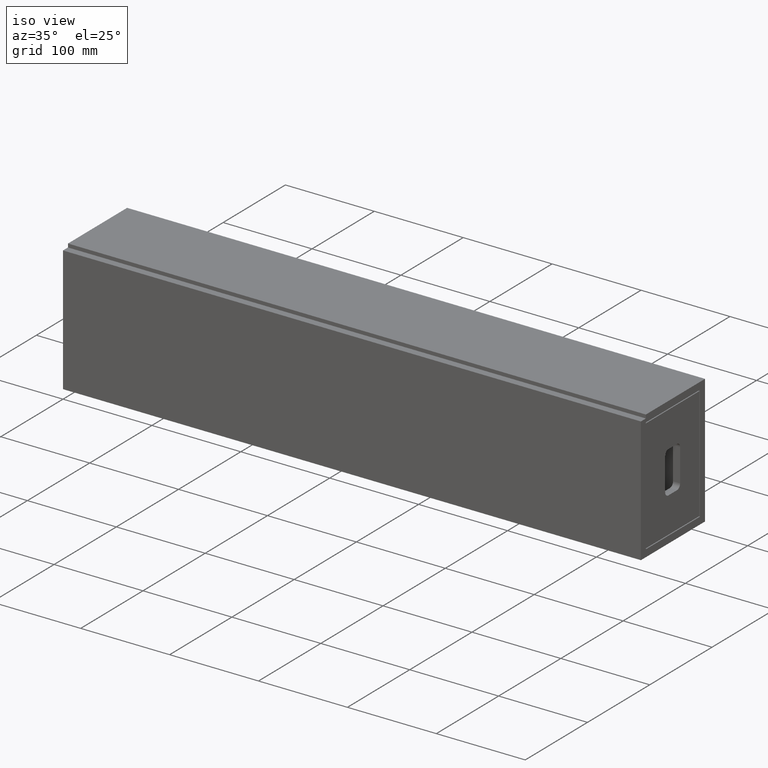
[diagram: clean part render]
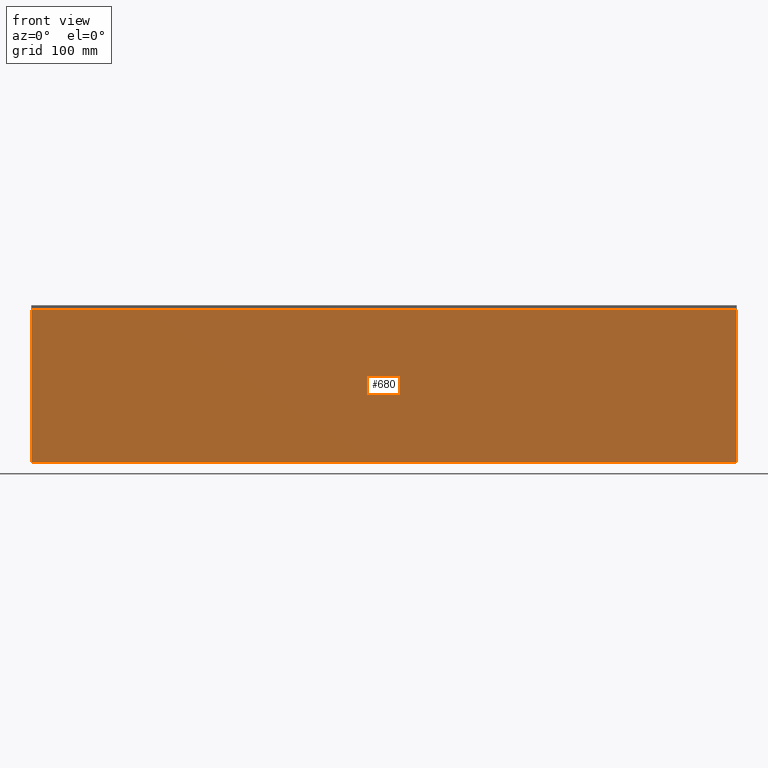
[diagram: tour spotlight — one face highlighted and labeled with its STEP entity id]
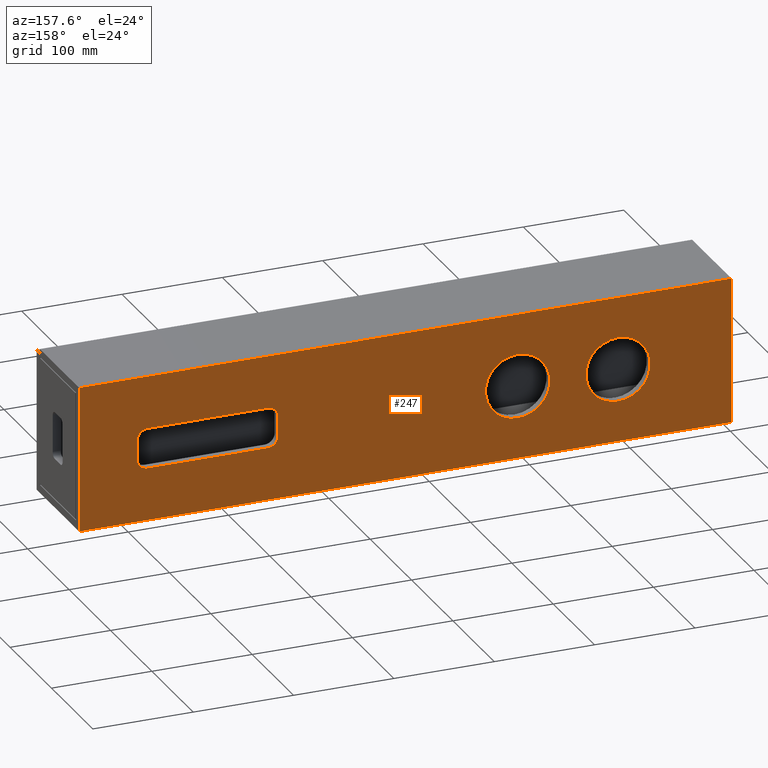
[diagram: tour spotlight — one face highlighted and labeled with its STEP entity id]
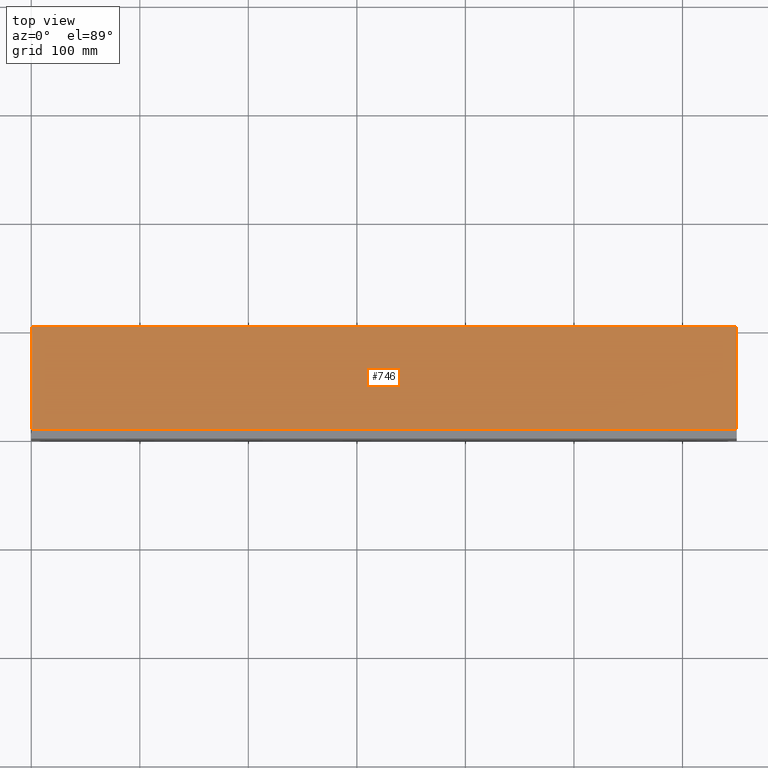
[diagram: tour spotlight — one face highlighted and labeled with its STEP entity id]
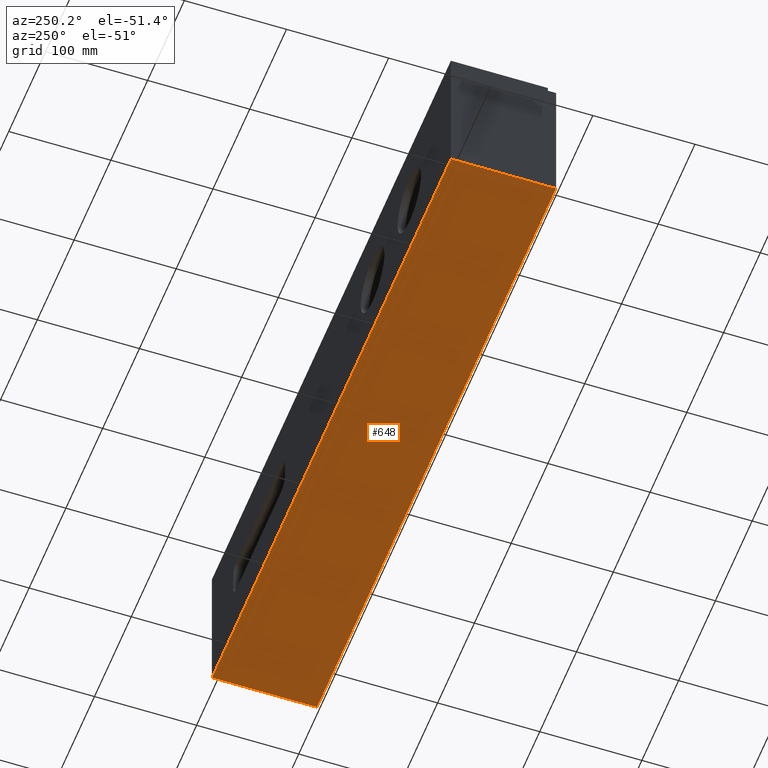
[diagram: tour spotlight — one face highlighted and labeled with its STEP entity id]
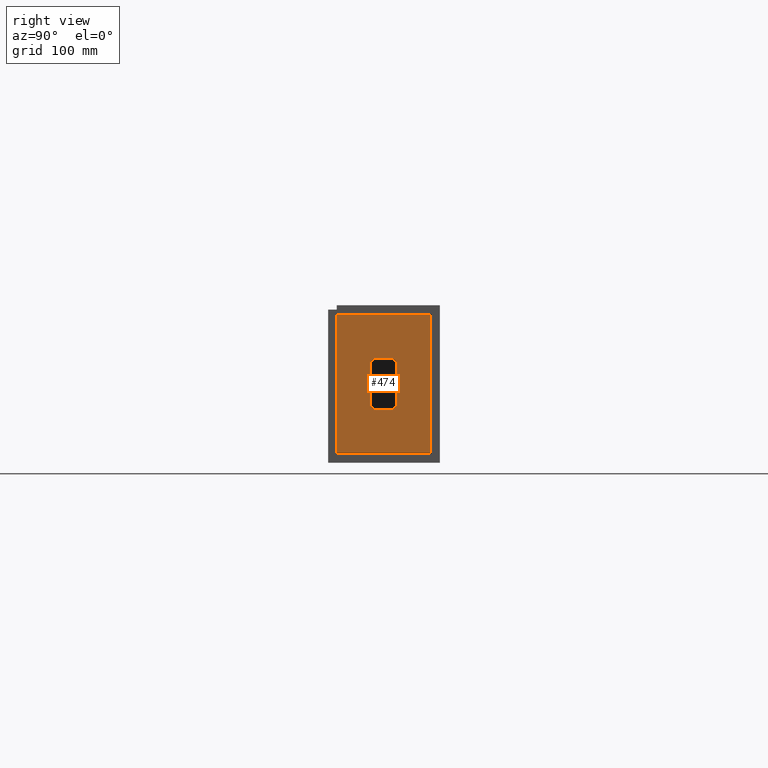
[diagram: tour spotlight — one face highlighted and labeled with its STEP entity id]
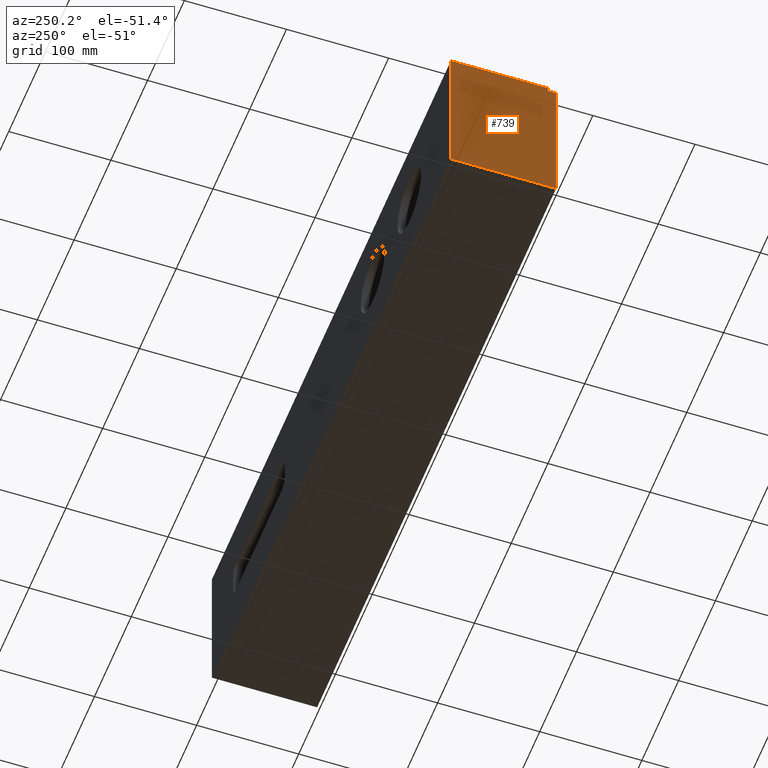
[diagram: tour spotlight — one face highlighted and labeled with its STEP entity id]
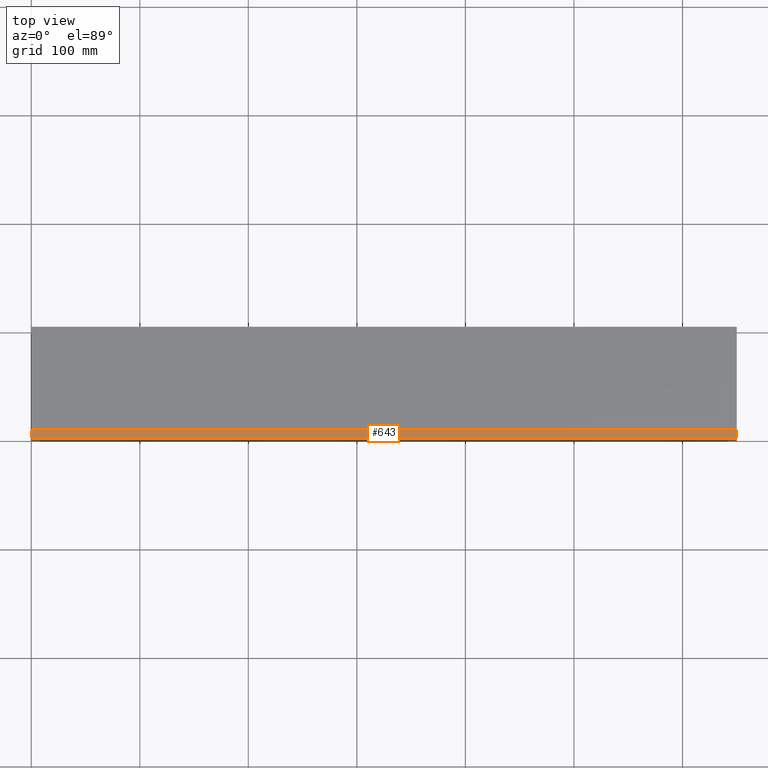
[diagram: tour spotlight — one face highlighted and labeled with its STEP entity id]
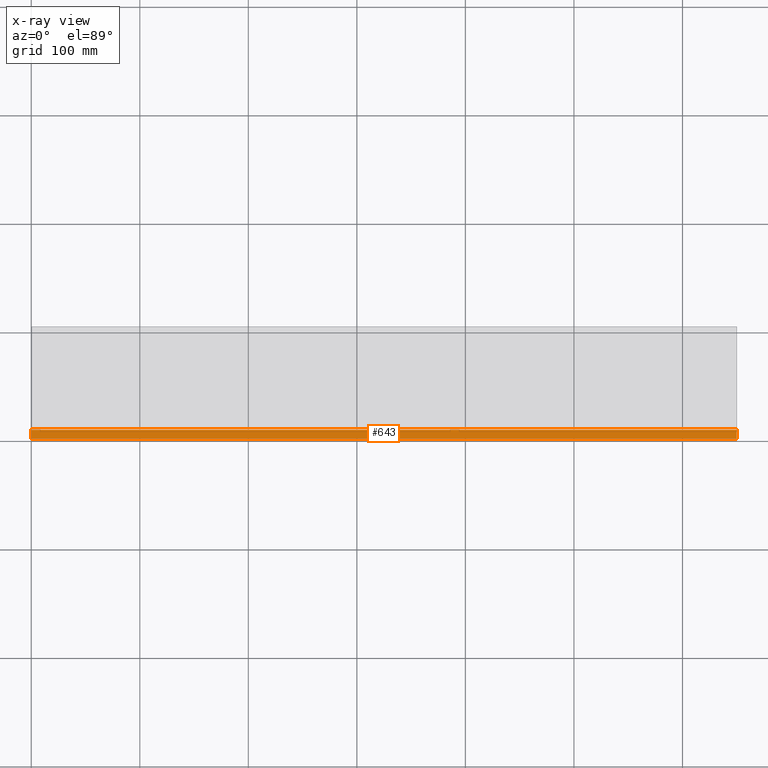
[diagram: x-ray of the same camera — body ghosted, this tour face saturated]
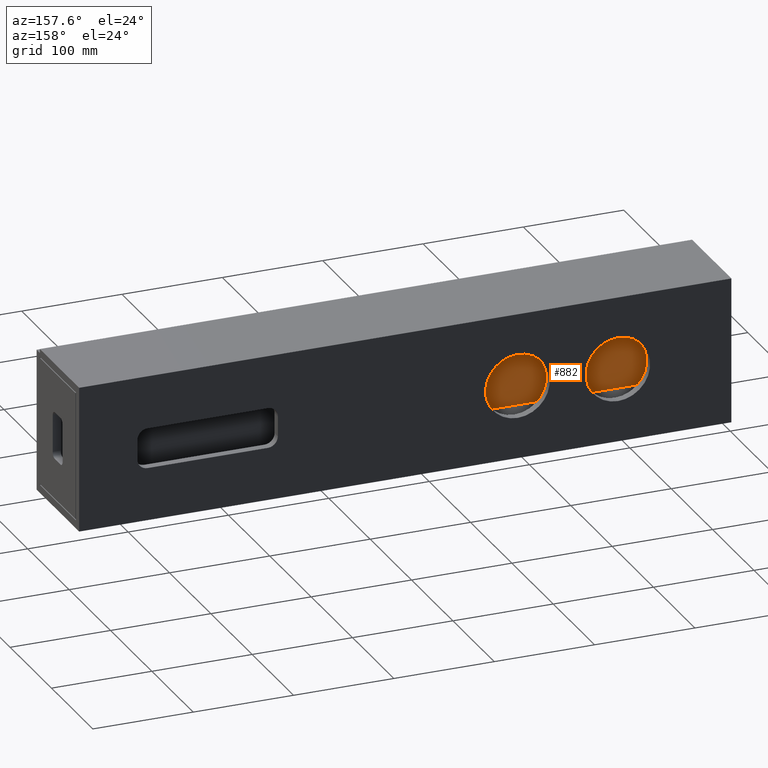
[diagram: tour spotlight — one face highlighted and labeled with its STEP entity id]
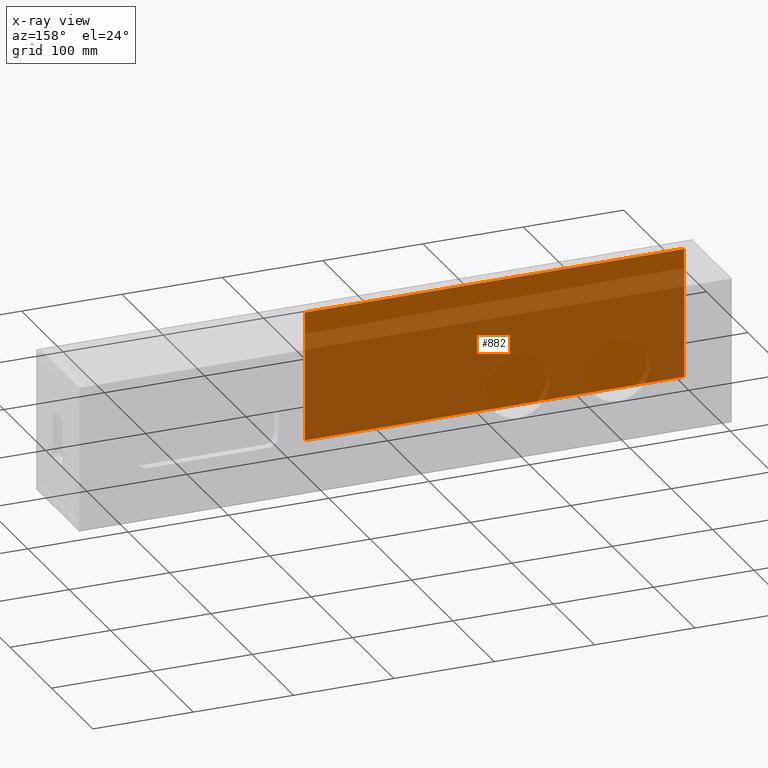
[diagram: x-ray of the same camera — body ghosted, this tour face saturated]
A machine part: a face-by-face anatomy tour. The part has 49 B-rep faces; the first image is the clean iso view, then the 8 largest visible faces are spotlighted one at a time (largest first), each with its STEP entity span.

Face 1 — front view, entity #680. In plain terms, the highlighted planar face has unit normal (-0, 1, 0).
Definition (entity closure, byte-faithful):
#3 = VECTOR ( 'NONE', #138, 1000.000000000000000 ) ;
#138 = DIRECTION ( 'NONE',  ( -1.000000000000000000, -0.0000000000000000000, -0.0000000000000000000 ) ) ;
#140 = CARTESIAN_POINT ( 'NONE',  ( 650.0000000000000000, -1.734723475976807094E-14, 141.0000000000000000 ) ) ;
#141 = LINE ( 'NONE', #140, #3 ) ;
#174 = VERTEX_POINT ( 'NONE', #513 ) ;
#200 = VECTOR ( 'NONE', #1122, 1000.000000000000000 ) ;
#362 = EDGE_CURVE ( 'NONE', #174, #1449, #141, .T. ) ;
#378 = VECTOR ( 'NONE', #1565, 1000.000000000000000 ) ;
#380 = AXIS2_PLACEMENT_3D ( 'NONE', #1270, #1268, #1266 ) ;
#477 = EDGE_CURVE ( 'NONE', #1261, #774, #1568, .T. ) ;
#508 = ORIENTED_EDGE ( 'NONE', *, *, #776, .F. ) ;
#513 = CARTESIAN_POINT ( 'NONE',  ( 650.0000000000000000, -1.734723475976807094E-14, 141.0000000000000000 ) ) ;
#544 = ORIENTED_EDGE ( 'NONE', *, *, #772, .T. ) ;
#568 = ORIENTED_EDGE ( 'NONE', *, *, #362, .T. ) ;
#601 = VECTOR ( 'NONE', #1130, 1000.000000000000000 ) ;
#680 = ADVANCED_FACE ( 'NONE', ( #1275 ), #1272, .F. ) ;
#755 = CARTESIAN_POINT ( 'NONE',  ( 0.0000000000000000000, -1.734723475976807094E-14, 141.0000000000000000 ) ) ;
#772 = EDGE_CURVE ( 'NONE', #1449, #774, #1135, .T. ) ;
#774 = VERTEX_POINT ( 'NONE', #1129 ) ;
#776 = EDGE_CURVE ( 'NONE', #174, #1261, #1126, .T. ) ;
#860 = CARTESIAN_POINT ( 'NONE',  ( 650.0000000000000000, 0.0000000000000000000, 0.0000000000000000000 ) ) ;
#963 = EDGE_LOOP ( 'NONE', ( #568, #544, #1369, #508 ) ) ;
#1122 = DIRECTION ( 'NONE',  ( -0.0000000000000000000, 1.230300337572203632E-16, -1.000000000000000000 ) ) ;
#1124 = CARTESIAN_POINT ( 'NONE',  ( 650.0000000000000000, 0.0000000000000000000, 0.0000000000000000000 ) ) ;
#1126 = LINE ( 'NONE', #1124, #200 ) ;
#1129 = CARTESIAN_POINT ( 'NONE',  ( 0.0000000000000000000, 0.0000000000000000000, 0.0000000000000000000 ) ) ;
#1130 = DIRECTION ( 'NONE',  ( -0.0000000000000000000, 1.230300337572203632E-16, -1.000000000000000000 ) ) ;
#1133 = CARTESIAN_POINT ( 'NONE',  ( 0.0000000000000000000, 0.0000000000000000000, 0.0000000000000000000 ) ) ;
#1135 = LINE ( 'NONE', #1133, #601 ) ;
#1261 = VERTEX_POINT ( 'NONE', #860 ) ;
#1266 = DIRECTION ( 'NONE',  ( 0.0000000000000000000, -1.230300337572203632E-16, 1.000000000000000000 ) ) ;
#1268 = DIRECTION ( 'NONE',  ( -0.0000000000000000000, 1.000000000000000000, 1.230300337572203632E-16 ) ) ;
#1270 = CARTESIAN_POINT ( 'NONE',  ( 650.0000000000000000, 0.0000000000000000000, 0.0000000000000000000 ) ) ;
#1272 = PLANE ( 'NONE',  #380 ) ;
#1275 = FACE_OUTER_BOUND ( 'NONE', #963, .T. ) ;
#1369 = ORIENTED_EDGE ( 'NONE', *, *, #477, .F. ) ;
#1449 = VERTEX_POINT ( 'NONE', #755 ) ;
#1565 = DIRECTION ( 'NONE',  ( -1.000000000000000000, -0.0000000000000000000, -0.0000000000000000000 ) ) ;
#1566 = CARTESIAN_POINT ( 'NONE',  ( 650.0000000000000000, 0.0000000000000000000, 0.0000000000000000000 ) ) ;
#1568 = LINE ( 'NONE', #1566, #378 ) ;

Face 2 — auxiliary view, entity #247. In plain terms, the highlighted planar face has unit normal (0, -1, -0).
Definition (entity closure, byte-faithful):
#1 = AXIS2_PLACEMENT_3D ( 'NONE', #1444, #1443, #1442 ) ;
#2 = DIRECTION ( 'NONE',  ( 0.0000000000000000000, -9.570888143320318106E-17, 1.000000000000000000 ) ) ;
#5 = CARTESIAN_POINT ( 'NONE',  ( 650.0000000000000000, 103.0000000000000000, 0.0000000000000000000 ) ) ;
#6 = LINE ( 'NONE', #5, #818 ) ;
#49 = AXIS2_PLACEMENT_3D ( 'NONE', #959, #957, #955 ) ;
#104 = AXIS2_PLACEMENT_3D ( 'NONE', #594, #471, #469 ) ;
#128 = CIRCLE ( 'NONE', #519, 32.00000000000000000 ) ;
#143 = CIRCLE ( 'NONE', #1, 32.00000000000000000 ) ;
#144 = DIRECTION ( 'NONE',  ( 1.000000000000000000, 0.0000000000000000000, 0.0000000000000000000 ) ) ;
#145 = CARTESIAN_POINT ( 'NONE',  ( 461.9999999999999432, 102.9999999999999858, 92.50000000000000000 ) ) ;
#146 = LINE ( 'NONE', #145, #788 ) ;
#147 = DIRECTION ( 'NONE',  ( -1.000000000000000000, -0.0000000000000000000, -0.0000000000000000000 ) ) ;
#148 = CARTESIAN_POINT ( 'NONE',  ( 650.0000000000000000, 102.9999999999999858, 144.9999999999999716 ) ) ;
#149 = LINE ( 'NONE', #148, #977 ) ;
#150 = DIRECTION ( 'NONE',  ( 0.0000000000000000000, -6.938893903907219503E-16, 1.000000000000000000 ) ) ;
#151 = CARTESIAN_POINT ( 'NONE',  ( 451.9999999999999432, 103.0000000000000000, 62.49999999999997868 ) ) ;
#152 = LINE ( 'NONE', #151, #266 ) ;
#156 = DIRECTION ( 'NONE',  ( 0.0000000000000000000, 0.0000000000000000000, 1.000000000000000000 ) ) ;
#159 = DIRECTION ( 'NONE',  ( 0.0000000000000000000, 1.000000000000000000, 9.570888143320319339E-17 ) ) ;
#160 = CARTESIAN_POINT ( 'NONE',  ( 461.9999999999999432, 102.9999999999999858, 82.50000000000000000 ) ) ;
#161 = VECTOR ( 'NONE', #1559, 1000.000000000000000 ) ;
#173 = DIRECTION ( 'NONE',  ( -0.0000000000000000000, 6.938893903907219503E-16, -1.000000000000000000 ) ) ;
#175 = LINE ( 'NONE', #1039, #373 ) ;
#196 = DIRECTION ( 'NONE',  ( 0.0000000000000000000, 0.0000000000000000000, -1.000000000000000000 ) ) ;
#197 = DIRECTION ( 'NONE',  ( 0.0000000000000000000, 1.000000000000000000, 9.570888143320319339E-17 ) ) ;
#203 = CARTESIAN_POINT ( 'NONE',  ( 582.0000000000000000, 103.0000000000000000, 62.49999999999998579 ) ) ;
#242 = EDGE_CURVE ( 'NONE', #890, #765, #764, .T. ) ;
#247 = ADVANCED_FACE ( 'NONE', ( #479, #478, #476, #473 ), #472, .F. ) ;
#253 = EDGE_CURVE ( 'NONE', #900, #1400, #453, .T. ) ;
#258 = EDGE_CURVE ( 'NONE', #765, #890, #128, .T. ) ;
#265 = EDGE_CURVE ( 'NONE', #1547, #1324, #433, .T. ) ;
#266 = VECTOR ( 'NONE', #150, 1000.000000000000000 ) ;
#273 = CIRCLE ( 'NONE', #1232, 9.999999999999994671 ) ;
#335 = EDGE_CURVE ( 'NONE', #1203, #1547, #436, .T. ) ;
#343 = EDGE_CURVE ( 'NONE', #1032, #1203, #175, .T. ) ;
#352 = EDGE_CURVE ( 'NONE', #1161, #828, #1068, .T. ) ;
#355 = EDGE_CURVE ( 'NONE', #1429, #1161, #152, .T. ) ;
#357 = EDGE_CURVE ( 'NONE', #853, #703, #149, .T. ) ;
#360 = EDGE_CURVE ( 'NONE', #828, #823, #146, .T. ) ;
#373 = VECTOR ( 'NONE', #173, 1000.000000000000000 ) ;
#406 = CIRCLE ( 'NONE', #49, 10.00000000000000178 ) ;
#431 = DIRECTION ( 'NONE',  ( -1.000000000000000000, -0.0000000000000000000, -0.0000000000000000000 ) ) ;
#432 = CARTESIAN_POINT ( 'NONE',  ( 461.9999999999999432, 103.0000000000000000, 52.49999999999998579 ) ) ;
#433 = LINE ( 'NONE', #432, #985 ) ;
#436 = CIRCLE ( 'NONE', #521, 10.00000000000000888 ) ;
#444 = DIRECTION ( 'NONE',  ( 0.0000000000000000000, 0.0000000000000000000, 1.000000000000000000 ) ) ;
#445 = DIRECTION ( 'NONE',  ( 0.0000000000000000000, 1.000000000000000000, 9.570888143320319339E-17 ) ) ;
#447 = CARTESIAN_POINT ( 'NONE',  ( 213.0000000000000284, 102.9999999999999858, 72.49999999999998579 ) ) ;
#451 = DIRECTION ( 'NONE',  ( -1.000000000000000000, -0.0000000000000000000, -0.0000000000000000000 ) ) ;
#452 = CARTESIAN_POINT ( 'NONE',  ( 650.0000000000000000, 103.0000000000000000, 0.0000000000000000000 ) ) ;
#453 = LINE ( 'NONE', #452, #1081 ) ;
#469 = DIRECTION ( 'NONE',  ( 0.0000000000000000000, 9.570888143320316874E-17, -1.000000000000000000 ) ) ;
#470 = EDGE_CURVE ( 'NONE', #900, #853, #6, .T. ) ;
#471 = DIRECTION ( 'NONE',  ( 0.0000000000000000000, -1.000000000000000000, -9.570888143320316874E-17 ) ) ;
#472 = PLANE ( 'NONE',  #104 ) ;
#473 = FACE_OUTER_BOUND ( 'NONE', #998, .T. ) ;
#476 = FACE_BOUND ( 'NONE', #1036, .T. ) ;
#478 = FACE_BOUND ( 'NONE', #1394, .T. ) ;
#479 = FACE_BOUND ( 'NONE', #1318, .T. ) ;
#480 = EDGE_CURVE ( 'NONE', #1400, #703, #1563, .T. ) ;
#489 = ORIENTED_EDGE ( 'NONE', *, *, #622, .F. ) ;
#507 = CARTESIAN_POINT ( 'NONE',  ( 213.0000000000000284, 102.9999999999999858, 72.49999999999998579 ) ) ;
#519 = AXIS2_PLACEMENT_3D ( 'NONE', #447, #445, #444 ) ;
#521 = AXIS2_PLACEMENT_3D ( 'NONE', #203, #197, #196 ) ;
#527 = ORIENTED_EDGE ( 'NONE', *, *, #343, .F. ) ;
#539 = DIRECTION ( 'NONE',  ( 0.0000000000000000000, 0.0000000000000000000, 1.000000000000000000 ) ) ;
#554 = EDGE_CURVE ( 'NONE', #823, #1032, #273, .T. ) ;
#583 = ORIENTED_EDGE ( 'NONE', *, *, #357, .F. ) ;
#584 = AXIS2_PLACEMENT_3D ( 'NONE', #843, #842, #840 ) ;
#594 = CARTESIAN_POINT ( 'NONE',  ( 650.0000000000000000, 103.0000000000000000, 0.0000000000000000000 ) ) ;
#611 = ORIENTED_EDGE ( 'NONE', *, *, #355, .F. ) ;
#614 = ORIENTED_EDGE ( 'NONE', *, *, #480, .T. ) ;
#615 = ORIENTED_EDGE ( 'NONE', *, *, #253, .T. ) ;
#622 = EDGE_CURVE ( 'NONE', #1432, #1201, #143, .T. ) ;
#641 = ORIENTED_EDGE ( 'NONE', *, *, #265, .F. ) ;
#688 = AXIS2_PLACEMENT_3D ( 'NONE', #507, #792, #539 ) ;
#703 = VERTEX_POINT ( 'NONE', #1243 ) ;
#704 = CARTESIAN_POINT ( 'NONE',  ( 582.0000000000000000, 103.0000000000000000, 52.49999999999998579 ) ) ;
#740 = ORIENTED_EDGE ( 'NONE', *, *, #1004, .F. ) ;
#741 = ORIENTED_EDGE ( 'NONE', *, *, #360, .F. ) ;
#764 = CIRCLE ( 'NONE', #688, 32.00000000000000000 ) ;
#765 = VERTEX_POINT ( 'NONE', #1141 ) ;
#771 = CARTESIAN_POINT ( 'NONE',  ( 113.0000000000000142, 102.9999999999999858, 104.4999999999999858 ) ) ;
#773 = CARTESIAN_POINT ( 'NONE',  ( 451.9999999999999432, 103.0000000000000000, 62.49999999999997868 ) ) ;
#778 = CARTESIAN_POINT ( 'NONE',  ( 0.0000000000000000000, 103.0000000000000000, 0.0000000000000000000 ) ) ;
#788 = VECTOR ( 'NONE', #144, 1000.000000000000000 ) ;
#792 = DIRECTION ( 'NONE',  ( 0.0000000000000000000, 1.000000000000000000, 9.570888143320319339E-17 ) ) ;
#817 = CIRCLE ( 'NONE', #584, 32.00000000000000000 ) ;
#818 = VECTOR ( 'NONE', #2, 1000.000000000000000 ) ;
#823 = VERTEX_POINT ( 'NONE', #1065 ) ;
#828 = VERTEX_POINT ( 'NONE', #1062 ) ;
#833 = CARTESIAN_POINT ( 'NONE',  ( 461.9999999999999432, 103.0000000000000000, 52.49999999999998579 ) ) ;
#840 = DIRECTION ( 'NONE',  ( 0.0000000000000000000, 0.0000000000000000000, 1.000000000000000000 ) ) ;
#842 = DIRECTION ( 'NONE',  ( 0.0000000000000000000, 1.000000000000000000, 9.570888143320319339E-17 ) ) ;
#843 = CARTESIAN_POINT ( 'NONE',  ( 113.0000000000000142, 102.9999999999999858, 72.49999999999998579 ) ) ;
#853 = VERTEX_POINT ( 'NONE', #1040 ) ;
#880 = CARTESIAN_POINT ( 'NONE',  ( 592.0000000000000000, 103.0000000000000000, 62.49999999999997868 ) ) ;
#881 = CARTESIAN_POINT ( 'NONE',  ( 113.0000000000000142, 102.9999999999999858, 40.49999999999998579 ) ) ;
#888 = CARTESIAN_POINT ( 'NONE',  ( 451.9999999999999432, 102.9999999999999858, 82.50000000000000000 ) ) ;
#890 = VERTEX_POINT ( 'NONE', #996 ) ;
#900 = VERTEX_POINT ( 'NONE', #995 ) ;
#916 = ORIENTED_EDGE ( 'NONE', *, *, #352, .F. ) ;
#930 = CARTESIAN_POINT ( 'NONE',  ( 592.0000000000000000, 102.9999999999999858, 82.50000000000000000 ) ) ;
#955 = DIRECTION ( 'NONE',  ( 0.0000000000000000000, 0.0000000000000000000, 1.000000000000000000 ) ) ;
#957 = DIRECTION ( 'NONE',  ( 0.0000000000000000000, 1.000000000000000000, 9.570888143320319339E-17 ) ) ;
#959 = CARTESIAN_POINT ( 'NONE',  ( 461.9999999999999432, 103.0000000000000000, 62.49999999999997868 ) ) ;
#977 = VECTOR ( 'NONE', #147, 1000.000000000000000 ) ;
#985 = VECTOR ( 'NONE', #431, 1000.000000000000000 ) ;
#995 = CARTESIAN_POINT ( 'NONE',  ( 650.0000000000000000, 103.0000000000000000, 0.0000000000000000000 ) ) ;
#996 = CARTESIAN_POINT ( 'NONE',  ( 213.0000000000000284, 102.9999999999999858, 40.49999999999998579 ) ) ;
#998 = EDGE_LOOP ( 'NONE', ( #615, #614, #583, #1108 ) ) ;
#1004 = EDGE_CURVE ( 'NONE', #1324, #1429, #406, .T. ) ;
#1032 = VERTEX_POINT ( 'NONE', #930 ) ;
#1036 = EDGE_LOOP ( 'NONE', ( #641, #1156, #527, #1279, #741, #916, #611, #740 ) ) ;
#1039 = CARTESIAN_POINT ( 'NONE',  ( 592.0000000000000000, 103.0000000000000000, 62.49999999999997868 ) ) ;
#1040 = CARTESIAN_POINT ( 'NONE',  ( 650.0000000000000000, 102.9999999999999858, 144.9999999999999716 ) ) ;
#1062 = CARTESIAN_POINT ( 'NONE',  ( 461.9999999999999432, 102.9999999999999858, 92.50000000000000000 ) ) ;
#1065 = CARTESIAN_POINT ( 'NONE',  ( 582.0000000000000000, 102.9999999999999858, 92.50000000000000000 ) ) ;
#1068 = CIRCLE ( 'NONE', #1170, 9.999999999999994671 ) ;
#1081 = VECTOR ( 'NONE', #451, 1000.000000000000000 ) ;
#1108 = ORIENTED_EDGE ( 'NONE', *, *, #470, .F. ) ;
#1141 = CARTESIAN_POINT ( 'NONE',  ( 213.0000000000000284, 102.9999999999999858, 104.4999999999999858 ) ) ;
#1156 = ORIENTED_EDGE ( 'NONE', *, *, #335, .F. ) ;
#1161 = VERTEX_POINT ( 'NONE', #888 ) ;
#1170 = AXIS2_PLACEMENT_3D ( 'NONE', #160, #159, #156 ) ;
#1196 = ORIENTED_EDGE ( 'NONE', *, *, #258, .F. ) ;
#1201 = VERTEX_POINT ( 'NONE', #881 ) ;
#1203 = VERTEX_POINT ( 'NONE', #880 ) ;
#1232 = AXIS2_PLACEMENT_3D ( 'NONE', #1510, #1509, #1507 ) ;
#1243 = CARTESIAN_POINT ( 'NONE',  ( 0.0000000000000000000, 102.9999999999999858, 144.9999999999999716 ) ) ;
#1279 = ORIENTED_EDGE ( 'NONE', *, *, #554, .F. ) ;
#1300 = ORIENTED_EDGE ( 'NONE', *, *, #242, .F. ) ;
#1302 = EDGE_CURVE ( 'NONE', #1201, #1432, #817, .T. ) ;
#1318 = EDGE_LOOP ( 'NONE', ( #489, #1410 ) ) ;
#1324 = VERTEX_POINT ( 'NONE', #833 ) ;
#1394 = EDGE_LOOP ( 'NONE', ( #1196, #1300 ) ) ;
#1400 = VERTEX_POINT ( 'NONE', #778 ) ;
#1410 = ORIENTED_EDGE ( 'NONE', *, *, #1302, .F. ) ;
#1429 = VERTEX_POINT ( 'NONE', #773 ) ;
#1432 = VERTEX_POINT ( 'NONE', #771 ) ;
#1442 = DIRECTION ( 'NONE',  ( 0.0000000000000000000, 0.0000000000000000000, 1.000000000000000000 ) ) ;
#1443 = DIRECTION ( 'NONE',  ( 0.0000000000000000000, 1.000000000000000000, 9.570888143320319339E-17 ) ) ;
#1444 = CARTESIAN_POINT ( 'NONE',  ( 113.0000000000000142, 102.9999999999999858, 72.49999999999998579 ) ) ;
#1507 = DIRECTION ( 'NONE',  ( 0.0000000000000000000, 0.0000000000000000000, 1.000000000000000000 ) ) ;
#1509 = DIRECTION ( 'NONE',  ( 0.0000000000000000000, 1.000000000000000000, 9.570888143320319339E-17 ) ) ;
#1510 = CARTESIAN_POINT ( 'NONE',  ( 582.0000000000000000, 102.9999999999999858, 82.50000000000000000 ) ) ;
#1547 = VERTEX_POINT ( 'NONE', #704 ) ;
#1559 = DIRECTION ( 'NONE',  ( 0.0000000000000000000, -9.570888143320318106E-17, 1.000000000000000000 ) ) ;
#1560 = CARTESIAN_POINT ( 'NONE',  ( 0.0000000000000000000, 103.0000000000000000, 0.0000000000000000000 ) ) ;
#1563 = LINE ( 'NONE', #1560, #161 ) ;

Face 3 — top view, entity #746. In plain terms, the highlighted planar face has unit normal (0, -0, -1).
Definition (entity closure, byte-faithful):
#23 = VECTOR ( 'NONE', #245, 1000.000000000000000 ) ;
#105 = DIRECTION ( 'NONE',  ( -1.000000000000000000, -0.0000000000000000000, -0.0000000000000000000 ) ) ;
#108 = CARTESIAN_POINT ( 'NONE',  ( 650.0000000000000000, 7.999999999999983125, 145.0000000000000000 ) ) ;
#109 = LINE ( 'NONE', #108, #640 ) ;
#147 = DIRECTION ( 'NONE',  ( -1.000000000000000000, -0.0000000000000000000, -0.0000000000000000000 ) ) ;
#148 = CARTESIAN_POINT ( 'NONE',  ( 650.0000000000000000, 102.9999999999999858, 144.9999999999999716 ) ) ;
#149 = LINE ( 'NONE', #148, #977 ) ;
#245 = DIRECTION ( 'NONE',  ( -0.0000000000000000000, -1.000000000000000000, 2.921639538487254261E-16 ) ) ;
#248 = CARTESIAN_POINT ( 'NONE',  ( 0.0000000000000000000, 7.999999999999983125, 145.0000000000000000 ) ) ;
#249 = LINE ( 'NONE', #248, #23 ) ;
#318 = EDGE_CURVE ( 'NONE', #703, #597, #249, .T. ) ;
#357 = EDGE_CURVE ( 'NONE', #853, #703, #149, .T. ) ;
#384 = EDGE_CURVE ( 'NONE', #683, #597, #109, .T. ) ;
#543 = VECTOR ( 'NONE', #1208, 1000.000000000000000 ) ;
#597 = VERTEX_POINT ( 'NONE', #1457 ) ;
#618 = ORIENTED_EDGE ( 'NONE', *, *, #729, .F. ) ;
#640 = VECTOR ( 'NONE', #105, 1000.000000000000000 ) ;
#644 = ORIENTED_EDGE ( 'NONE', *, *, #318, .T. ) ;
#683 = VERTEX_POINT ( 'NONE', #1254 ) ;
#703 = VERTEX_POINT ( 'NONE', #1243 ) ;
#729 = EDGE_CURVE ( 'NONE', #853, #683, #1214, .T. ) ;
#746 = ADVANCED_FACE ( 'NONE', ( #1166 ), #1163, .F. ) ;
#832 = ORIENTED_EDGE ( 'NONE', *, *, #384, .F. ) ;
#853 = VERTEX_POINT ( 'NONE', #1040 ) ;
#913 = AXIS2_PLACEMENT_3D ( 'NONE', #1162, #1160, #1159 ) ;
#977 = VECTOR ( 'NONE', #147, 1000.000000000000000 ) ;
#1040 = CARTESIAN_POINT ( 'NONE',  ( 650.0000000000000000, 102.9999999999999858, 144.9999999999999716 ) ) ;
#1159 = DIRECTION ( 'NONE',  ( 0.0000000000000000000, 1.000000000000000000, -2.921639538487254261E-16 ) ) ;
#1160 = DIRECTION ( 'NONE',  ( 0.0000000000000000000, -2.921639538487254261E-16, -1.000000000000000000 ) ) ;
#1162 = CARTESIAN_POINT ( 'NONE',  ( 650.0000000000000000, 7.999999999999983125, 145.0000000000000000 ) ) ;
#1163 = PLANE ( 'NONE',  #913 ) ;
#1166 = FACE_OUTER_BOUND ( 'NONE', #1535, .T. ) ;
#1208 = DIRECTION ( 'NONE',  ( -0.0000000000000000000, -1.000000000000000000, 2.921639538487254261E-16 ) ) ;
#1211 = CARTESIAN_POINT ( 'NONE',  ( 650.0000000000000000, 7.999999999999983125, 145.0000000000000000 ) ) ;
#1214 = LINE ( 'NONE', #1211, #543 ) ;
#1243 = CARTESIAN_POINT ( 'NONE',  ( 0.0000000000000000000, 102.9999999999999858, 144.9999999999999716 ) ) ;
#1254 = CARTESIAN_POINT ( 'NONE',  ( 650.0000000000000000, 7.999999999999983125, 145.0000000000000000 ) ) ;
#1408 = ORIENTED_EDGE ( 'NONE', *, *, #357, .T. ) ;
#1457 = CARTESIAN_POINT ( 'NONE',  ( 0.0000000000000000000, 7.999999999999983125, 145.0000000000000000 ) ) ;
#1535 = EDGE_LOOP ( 'NONE', ( #644, #832, #618, #1408 ) ) ;

Face 4 — auxiliary view, entity #648. In plain terms, the highlighted planar face has unit normal (0, 0, 1).
Definition (entity closure, byte-faithful):
#253 = EDGE_CURVE ( 'NONE', #900, #1400, #453, .T. ) ;
#378 = VECTOR ( 'NONE', #1565, 1000.000000000000000 ) ;
#451 = DIRECTION ( 'NONE',  ( -1.000000000000000000, -0.0000000000000000000, -0.0000000000000000000 ) ) ;
#452 = CARTESIAN_POINT ( 'NONE',  ( 650.0000000000000000, 103.0000000000000000, 0.0000000000000000000 ) ) ;
#453 = LINE ( 'NONE', #452, #1081 ) ;
#477 = EDGE_CURVE ( 'NONE', #1261, #774, #1568, .T. ) ;
#535 = ORIENTED_EDGE ( 'NONE', *, *, #477, .T. ) ;
#557 = EDGE_CURVE ( 'NONE', #774, #1400, #1500, .T. ) ;
#635 = VECTOR ( 'NONE', #1055, 1000.000000000000000 ) ;
#648 = ADVANCED_FACE ( 'NONE', ( #1383 ), #1382, .F. ) ;
#692 = ORIENTED_EDGE ( 'NONE', *, *, #557, .T. ) ;
#774 = VERTEX_POINT ( 'NONE', #1129 ) ;
#778 = CARTESIAN_POINT ( 'NONE',  ( 0.0000000000000000000, 103.0000000000000000, 0.0000000000000000000 ) ) ;
#837 = EDGE_CURVE ( 'NONE', #1261, #900, #1061, .T. ) ;
#860 = CARTESIAN_POINT ( 'NONE',  ( 650.0000000000000000, 0.0000000000000000000, 0.0000000000000000000 ) ) ;
#900 = VERTEX_POINT ( 'NONE', #995 ) ;
#952 = AXIS2_PLACEMENT_3D ( 'NONE', #1381, #1380, #1379 ) ;
#995 = CARTESIAN_POINT ( 'NONE',  ( 650.0000000000000000, 103.0000000000000000, 0.0000000000000000000 ) ) ;
#1055 = DIRECTION ( 'NONE',  ( 0.0000000000000000000, 1.000000000000000000, 0.0000000000000000000 ) ) ;
#1058 = CARTESIAN_POINT ( 'NONE',  ( 650.0000000000000000, 0.0000000000000000000, 0.0000000000000000000 ) ) ;
#1061 = LINE ( 'NONE', #1058, #635 ) ;
#1081 = VECTOR ( 'NONE', #451, 1000.000000000000000 ) ;
#1129 = CARTESIAN_POINT ( 'NONE',  ( 0.0000000000000000000, 0.0000000000000000000, 0.0000000000000000000 ) ) ;
#1261 = VERTEX_POINT ( 'NONE', #860 ) ;
#1273 = EDGE_LOOP ( 'NONE', ( #535, #692, #1515, #1412 ) ) ;
#1379 = DIRECTION ( 'NONE',  ( 1.000000000000000000, 0.0000000000000000000, -0.0000000000000000000 ) ) ;
#1380 = DIRECTION ( 'NONE',  ( 0.0000000000000000000, 0.0000000000000000000, 1.000000000000000000 ) ) ;
#1381 = CARTESIAN_POINT ( 'NONE',  ( 650.0000000000000000, 0.0000000000000000000, 0.0000000000000000000 ) ) ;
#1382 = PLANE ( 'NONE',  #952 ) ;
#1383 = FACE_OUTER_BOUND ( 'NONE', #1273, .T. ) ;
#1400 = VERTEX_POINT ( 'NONE', #778 ) ;
#1412 = ORIENTED_EDGE ( 'NONE', *, *, #837, .F. ) ;
#1452 = VECTOR ( 'NONE', #1497, 1000.000000000000000 ) ;
#1497 = DIRECTION ( 'NONE',  ( 0.0000000000000000000, 1.000000000000000000, 0.0000000000000000000 ) ) ;
#1499 = CARTESIAN_POINT ( 'NONE',  ( 0.0000000000000000000, 0.0000000000000000000, 0.0000000000000000000 ) ) ;
#1500 = LINE ( 'NONE', #1499, #1452 ) ;
#1515 = ORIENTED_EDGE ( 'NONE', *, *, #253, .F. ) ;
#1565 = DIRECTION ( 'NONE',  ( -1.000000000000000000, -0.0000000000000000000, -0.0000000000000000000 ) ) ;
#1566 = CARTESIAN_POINT ( 'NONE',  ( 650.0000000000000000, 0.0000000000000000000, 0.0000000000000000000 ) ) ;
#1568 = LINE ( 'NONE', #1566, #378 ) ;

Face 5 — right view, entity #474. In plain terms, the highlighted planar face has unit normal (-1, 0, 0).
Definition (entity closure, byte-faithful):
#43 = DIRECTION ( 'NONE',  ( -0.0000000000000000000, -0.0000000000000000000, -1.000000000000000000 ) ) ;
#44 = CARTESIAN_POINT ( 'NONE',  ( 650.0000000000000000, 93.99999999999997158, 407.0592527576124553 ) ) ;
#45 = LINE ( 'NONE', #44, #1014 ) ;
#106 = VECTOR ( 'NONE', #1523, 1000.000000000000000 ) ;
#162 = VECTOR ( 'NONE', #1256, 1000.000000000000000 ) ;
#164 = DIRECTION ( 'NONE',  ( 0.0000000000000000000, 1.000000000000000000, 0.0000000000000000000 ) ) ;
#165 = CARTESIAN_POINT ( 'NONE',  ( 650.0000000000000000, 43.99999999999997158, 48.99999999999996447 ) ) ;
#166 = LINE ( 'NONE', #165, #546 ) ;
#180 = AXIS2_PLACEMENT_3D ( 'NONE', #701, #698, #697 ) ;
#262 = EDGE_CURVE ( 'NONE', #789, #631, #762, .T. ) ;
#281 = DIRECTION ( 'NONE',  ( 0.0000000000000000000, 1.875376730785738212E-16, -1.000000000000000000 ) ) ;
#282 = CARTESIAN_POINT ( 'NONE',  ( 650.0000000000000000, 38.99999999999997158, 90.99999999999997158 ) ) ;
#285 = LINE ( 'NONE', #282, #588 ) ;
#289 = DIRECTION ( 'NONE',  ( 0.0000000000000000000, -1.000000000000000000, 0.0000000000000000000 ) ) ;
#291 = CARTESIAN_POINT ( 'NONE',  ( 650.0000000000000000, 93.99999999999997158, 135.9999999999999432 ) ) ;
#292 = LINE ( 'NONE', #291, #822 ) ;
#299 = DIRECTION ( 'NONE',  ( -0.0000000000000000000, 1.000000000000000000, -0.0000000000000000000 ) ) ;
#300 = EDGE_CURVE ( 'NONE', #1366, #929, #305, .T. ) ;
#301 = CARTESIAN_POINT ( 'NONE',  ( 650.0000000000000000, 93.99999999999997158, 9.000000000000001776 ) ) ;
#305 = LINE ( 'NONE', #301, #691 ) ;
#307 = EDGE_CURVE ( 'NONE', #1137, #1281, #292, .T. ) ;
#310 = EDGE_CURVE ( 'NONE', #1276, #789, #285, .T. ) ;
#329 = PLANE ( 'NONE',  #585 ) ;
#345 = AXIS2_PLACEMENT_3D ( 'NONE', #1434, #1431, #1430 ) ;
#351 = EDGE_CURVE ( 'NONE', #631, #681, #166, .T. ) ;
#418 = EDGE_CURVE ( 'NONE', #1137, #929, #45, .T. ) ;
#434 = DIRECTION ( 'NONE',  ( 0.0000000000000000000, 0.0000000000000000000, -1.000000000000000000 ) ) ;
#435 = DIRECTION ( 'NONE',  ( 1.000000000000000000, 0.0000000000000000000, 0.0000000000000000000 ) ) ;
#437 = CARTESIAN_POINT ( 'NONE',  ( 650.0000000000000000, 43.99999999999997158, 53.99999999999997868 ) ) ;
#474 = ADVANCED_FACE ( 'NONE', ( #633, #950 ), #329, .F. ) ;
#511 = EDGE_CURVE ( 'NONE', #1281, #1366, #1528, .T. ) ;
#531 = VERTEX_POINT ( 'NONE', #1521 ) ;
#546 = VECTOR ( 'NONE', #164, 1000.000000000000000 ) ;
#549 = CARTESIAN_POINT ( 'NONE',  ( 650.0000000000000000, 93.99999999999997158, 407.0592527576124553 ) ) ;
#585 = AXIS2_PLACEMENT_3D ( 'NONE', #549, #1548, #621 ) ;
#588 = VECTOR ( 'NONE', #281, 1000.000000000000000 ) ;
#621 = DIRECTION ( 'NONE',  ( 0.0000000000000000000, 0.0000000000000000000, 1.000000000000000000 ) ) ;
#627 = EDGE_CURVE ( 'NONE', #681, #531, #786, .T. ) ;
#629 = EDGE_CURVE ( 'NONE', #1282, #1276, #1048, .T. ) ;
#631 = VERTEX_POINT ( 'NONE', #1418 ) ;
#633 = FACE_BOUND ( 'NONE', #1245, .T. ) ;
#681 = VERTEX_POINT ( 'NONE', #1264 ) ;
#682 = EDGE_CURVE ( 'NONE', #531, #1265, #1262, .T. ) ;
#691 = VECTOR ( 'NONE', #299, 1000.000000000000000 ) ;
#697 = DIRECTION ( 'NONE',  ( 0.0000000000000000000, 0.0000000000000000000, 1.000000000000000000 ) ) ;
#698 = DIRECTION ( 'NONE',  ( 1.000000000000000000, 0.0000000000000000000, -0.0000000000000000000 ) ) ;
#701 = CARTESIAN_POINT ( 'NONE',  ( 650.0000000000000000, 57.99999999999997868, 90.99999999999998579 ) ) ;
#762 = CIRCLE ( 'NONE', #1552, 5.000000000000004441 ) ;
#786 = CIRCLE ( 'NONE', #1288, 5.000000000000004441 ) ;
#789 = VERTEX_POINT ( 'NONE', #1114 ) ;
#809 = CARTESIAN_POINT ( 'NONE',  ( 650.0000000000000000, 7.999999999999983125, 9.000000000000001776 ) ) ;
#822 = VECTOR ( 'NONE', #289, 1000.000000000000000 ) ;
#846 = CARTESIAN_POINT ( 'NONE',  ( 650.0000000000000000, 43.99999999999996447, 95.99999999999997158 ) ) ;
#848 = CARTESIAN_POINT ( 'NONE',  ( 650.0000000000000000, 7.999999999999983125, 135.9999999999999432 ) ) ;
#851 = CARTESIAN_POINT ( 'NONE',  ( 650.0000000000000000, 38.99999999999997158, 90.99999999999997158 ) ) ;
#856 = CARTESIAN_POINT ( 'NONE',  ( 650.0000000000000000, 62.99999999999998579, 90.99999999999997158 ) ) ;
#895 = CARTESIAN_POINT ( 'NONE',  ( 650.0000000000000000, 93.99999999999997158, 135.9999999999999432 ) ) ;
#899 = ORIENTED_EDGE ( 'NONE', *, *, #1558, .F. ) ;
#903 = EDGE_CURVE ( 'NONE', #922, #1282, #993, .T. ) ;
#905 = ORIENTED_EDGE ( 'NONE', *, *, #351, .F. ) ;
#922 = VERTEX_POINT ( 'NONE', #987 ) ;
#929 = VERTEX_POINT ( 'NONE', #983 ) ;
#944 = ORIENTED_EDGE ( 'NONE', *, *, #418, .F. ) ;
#950 = FACE_OUTER_BOUND ( 'NONE', #1319, .T. ) ;
#961 = ORIENTED_EDGE ( 'NONE', *, *, #682, .F. ) ;
#965 = ORIENTED_EDGE ( 'NONE', *, *, #310, .F. ) ;
#972 = ORIENTED_EDGE ( 'NONE', *, *, #629, .F. ) ;
#979 = ORIENTED_EDGE ( 'NONE', *, *, #262, .F. ) ;
#983 = CARTESIAN_POINT ( 'NONE',  ( 650.0000000000000000, 93.99999999999997158, 9.000000000000001776 ) ) ;
#986 = ORIENTED_EDGE ( 'NONE', *, *, #511, .T. ) ;
#987 = CARTESIAN_POINT ( 'NONE',  ( 650.0000000000000000, 57.99999999999997868, 96.00000000000000000 ) ) ;
#990 = DIRECTION ( 'NONE',  ( -0.0000000000000000000, -1.000000000000000000, -9.912705577010318647E-16 ) ) ;
#992 = CARTESIAN_POINT ( 'NONE',  ( 650.0000000000000000, 43.99999999999996447, 95.99999999999998579 ) ) ;
#993 = LINE ( 'NONE', #992, #1543 ) ;
#1014 = VECTOR ( 'NONE', #43, 1000.000000000000000 ) ;
#1029 = ORIENTED_EDGE ( 'NONE', *, *, #307, .T. ) ;
#1041 = ORIENTED_EDGE ( 'NONE', *, *, #627, .F. ) ;
#1048 = CIRCLE ( 'NONE', #345, 5.000000000000004441 ) ;
#1059 = ORIENTED_EDGE ( 'NONE', *, *, #903, .F. ) ;
#1097 = ORIENTED_EDGE ( 'NONE', *, *, #300, .T. ) ;
#1105 = CIRCLE ( 'NONE', #180, 5.000000000000004441 ) ;
#1114 = CARTESIAN_POINT ( 'NONE',  ( 650.0000000000000000, 38.99999999999997868, 53.99999999999998579 ) ) ;
#1137 = VERTEX_POINT ( 'NONE', #895 ) ;
#1245 = EDGE_LOOP ( 'NONE', ( #905, #979, #965, #972, #1059, #899, #961, #1041 ) ) ;
#1256 = DIRECTION ( 'NONE',  ( -0.0000000000000000000, -0.0000000000000000000, 1.000000000000000000 ) ) ;
#1260 = CARTESIAN_POINT ( 'NONE',  ( 650.0000000000000000, 62.99999999999997158, 90.99999999999997158 ) ) ;
#1262 = LINE ( 'NONE', #1260, #162 ) ;
#1264 = CARTESIAN_POINT ( 'NONE',  ( 650.0000000000000000, 57.99999999999997868, 48.99999999999997158 ) ) ;
#1265 = VERTEX_POINT ( 'NONE', #856 ) ;
#1276 = VERTEX_POINT ( 'NONE', #851 ) ;
#1281 = VERTEX_POINT ( 'NONE', #848 ) ;
#1282 = VERTEX_POINT ( 'NONE', #846 ) ;
#1288 = AXIS2_PLACEMENT_3D ( 'NONE', #1439, #1438, #1437 ) ;
#1319 = EDGE_LOOP ( 'NONE', ( #944, #1029, #986, #1097 ) ) ;
#1366 = VERTEX_POINT ( 'NONE', #809 ) ;
#1418 = CARTESIAN_POINT ( 'NONE',  ( 650.0000000000000000, 43.99999999999997158, 48.99999999999998579 ) ) ;
#1430 = DIRECTION ( 'NONE',  ( 0.0000000000000000000, 0.0000000000000000000, 1.000000000000000000 ) ) ;
#1431 = DIRECTION ( 'NONE',  ( 1.000000000000000000, 0.0000000000000000000, -0.0000000000000000000 ) ) ;
#1434 = CARTESIAN_POINT ( 'NONE',  ( 650.0000000000000000, 43.99999999999996447, 90.99999999999997158 ) ) ;
#1437 = DIRECTION ( 'NONE',  ( 0.0000000000000000000, 0.0000000000000000000, 1.000000000000000000 ) ) ;
#1438 = DIRECTION ( 'NONE',  ( 1.000000000000000000, 0.0000000000000000000, -0.0000000000000000000 ) ) ;
#1439 = CARTESIAN_POINT ( 'NONE',  ( 650.0000000000000000, 57.99999999999997868, 53.99999999999997868 ) ) ;
#1521 = CARTESIAN_POINT ( 'NONE',  ( 650.0000000000000000, 62.99999999999997158, 53.99999999999998579 ) ) ;
#1523 = DIRECTION ( 'NONE',  ( -0.0000000000000000000, -0.0000000000000000000, -1.000000000000000000 ) ) ;
#1526 = CARTESIAN_POINT ( 'NONE',  ( 650.0000000000000000, 7.999999999999983125, 407.0592527576124553 ) ) ;
#1528 = LINE ( 'NONE', #1526, #106 ) ;
#1543 = VECTOR ( 'NONE', #990, 1000.000000000000000 ) ;
#1548 = DIRECTION ( 'NONE',  ( -1.000000000000000000, 0.0000000000000000000, 0.0000000000000000000 ) ) ;
#1552 = AXIS2_PLACEMENT_3D ( 'NONE', #437, #435, #434 ) ;
#1558 = EDGE_CURVE ( 'NONE', #1265, #922, #1105, .T. ) ;

Face 6 — auxiliary view, entity #739. In plain terms, the highlighted planar face has unit normal (1, 0, -0).
Definition (entity closure, byte-faithful):
#23 = VECTOR ( 'NONE', #245, 1000.000000000000000 ) ;
#161 = VECTOR ( 'NONE', #1559, 1000.000000000000000 ) ;
#245 = DIRECTION ( 'NONE',  ( -0.0000000000000000000, -1.000000000000000000, 2.921639538487254261E-16 ) ) ;
#248 = CARTESIAN_POINT ( 'NONE',  ( 0.0000000000000000000, 7.999999999999983125, 145.0000000000000000 ) ) ;
#249 = LINE ( 'NONE', #248, #23 ) ;
#318 = EDGE_CURVE ( 'NONE', #703, #597, #249, .T. ) ;
#480 = EDGE_CURVE ( 'NONE', #1400, #703, #1563, .T. ) ;
#557 = EDGE_CURVE ( 'NONE', #774, #1400, #1500, .T. ) ;
#567 = ORIENTED_EDGE ( 'NONE', *, *, #772, .F. ) ;
#582 = ORIENTED_EDGE ( 'NONE', *, *, #1018, .F. ) ;
#597 = VERTEX_POINT ( 'NONE', #1457 ) ;
#601 = VECTOR ( 'NONE', #1130, 1000.000000000000000 ) ;
#623 = ORIENTED_EDGE ( 'NONE', *, *, #480, .F. ) ;
#703 = VERTEX_POINT ( 'NONE', #1243 ) ;
#739 = ADVANCED_FACE ( 'NONE', ( #1186 ), #1183, .F. ) ;
#751 = EDGE_CURVE ( 'NONE', #770, #1449, #1151, .T. ) ;
#755 = CARTESIAN_POINT ( 'NONE',  ( 0.0000000000000000000, -1.734723475976807094E-14, 141.0000000000000000 ) ) ;
#770 = VERTEX_POINT ( 'NONE', #1138 ) ;
#772 = EDGE_CURVE ( 'NONE', #1449, #774, #1135, .T. ) ;
#774 = VERTEX_POINT ( 'NONE', #1129 ) ;
#778 = CARTESIAN_POINT ( 'NONE',  ( 0.0000000000000000000, 103.0000000000000000, 0.0000000000000000000 ) ) ;
#919 = AXIS2_PLACEMENT_3D ( 'NONE', #1181, #1180, #1177 ) ;
#941 = DIRECTION ( 'NONE',  ( 0.0000000000000000000, 0.0000000000000000000, -1.000000000000000000 ) ) ;
#942 = CARTESIAN_POINT ( 'NONE',  ( 0.0000000000000000000, 7.999999999999983125, 145.0000000000000000 ) ) ;
#943 = LINE ( 'NONE', #942, #1102 ) ;
#948 = ORIENTED_EDGE ( 'NONE', *, *, #751, .F. ) ;
#1018 = EDGE_CURVE ( 'NONE', #597, #770, #943, .T. ) ;
#1051 = ORIENTED_EDGE ( 'NONE', *, *, #557, .F. ) ;
#1102 = VECTOR ( 'NONE', #941, 1000.000000000000000 ) ;
#1129 = CARTESIAN_POINT ( 'NONE',  ( 0.0000000000000000000, 0.0000000000000000000, 0.0000000000000000000 ) ) ;
#1130 = DIRECTION ( 'NONE',  ( -0.0000000000000000000, 1.230300337572203632E-16, -1.000000000000000000 ) ) ;
#1133 = CARTESIAN_POINT ( 'NONE',  ( 0.0000000000000000000, 0.0000000000000000000, 0.0000000000000000000 ) ) ;
#1135 = LINE ( 'NONE', #1133, #601 ) ;
#1138 = CARTESIAN_POINT ( 'NONE',  ( 0.0000000000000000000, 7.999999999999983125, 141.0000000000000000 ) ) ;
#1148 = DIRECTION ( 'NONE',  ( 0.0000000000000000000, -1.000000000000000000, 0.0000000000000000000 ) ) ;
#1150 = CARTESIAN_POINT ( 'NONE',  ( 0.0000000000000000000, 7.999999999999983125, 141.0000000000000000 ) ) ;
#1151 = LINE ( 'NONE', #1150, #1307 ) ;
#1177 = DIRECTION ( 'NONE',  ( -0.0000000000000000000, 0.0000000000000000000, -1.000000000000000000 ) ) ;
#1180 = DIRECTION ( 'NONE',  ( 1.000000000000000000, 0.0000000000000000000, -0.0000000000000000000 ) ) ;
#1181 = CARTESIAN_POINT ( 'NONE',  ( 0.0000000000000000000, 0.0000000000000000000, 0.0000000000000000000 ) ) ;
#1183 = PLANE ( 'NONE',  #919 ) ;
#1186 = FACE_OUTER_BOUND ( 'NONE', #1285, .T. ) ;
#1243 = CARTESIAN_POINT ( 'NONE',  ( 0.0000000000000000000, 102.9999999999999858, 144.9999999999999716 ) ) ;
#1285 = EDGE_LOOP ( 'NONE', ( #1051, #567, #948, #582, #1513, #623 ) ) ;
#1307 = VECTOR ( 'NONE', #1148, 1000.000000000000000 ) ;
#1400 = VERTEX_POINT ( 'NONE', #778 ) ;
#1449 = VERTEX_POINT ( 'NONE', #755 ) ;
#1452 = VECTOR ( 'NONE', #1497, 1000.000000000000000 ) ;
#1457 = CARTESIAN_POINT ( 'NONE',  ( 0.0000000000000000000, 7.999999999999983125, 145.0000000000000000 ) ) ;
#1497 = DIRECTION ( 'NONE',  ( 0.0000000000000000000, 1.000000000000000000, 0.0000000000000000000 ) ) ;
#1499 = CARTESIAN_POINT ( 'NONE',  ( 0.0000000000000000000, 0.0000000000000000000, 0.0000000000000000000 ) ) ;
#1500 = LINE ( 'NONE', #1499, #1452 ) ;
#1513 = ORIENTED_EDGE ( 'NONE', *, *, #318, .F. ) ;
#1559 = DIRECTION ( 'NONE',  ( 0.0000000000000000000, -9.570888143320318106E-17, 1.000000000000000000 ) ) ;
#1560 = CARTESIAN_POINT ( 'NONE',  ( 0.0000000000000000000, 103.0000000000000000, 0.0000000000000000000 ) ) ;
#1563 = LINE ( 'NONE', #1560, #161 ) ;

Face 7 — top view, entity #643. An x-ray twin of the same camera follows (body ghosted, this face saturated) — the face is partly hidden behind the body. In plain terms, the highlighted planar face has unit normal (0, 0, -1).
Definition (entity closure, byte-faithful):
#3 = VECTOR ( 'NONE', #138, 1000.000000000000000 ) ;
#51 = VECTOR ( 'NONE', #1091, 1000.000000000000000 ) ;
#86 = CARTESIAN_POINT ( 'NONE',  ( 650.0000000000000000, 7.999999999999983125, 141.0000000000000000 ) ) ;
#138 = DIRECTION ( 'NONE',  ( -1.000000000000000000, -0.0000000000000000000, -0.0000000000000000000 ) ) ;
#140 = CARTESIAN_POINT ( 'NONE',  ( 650.0000000000000000, -1.734723475976807094E-14, 141.0000000000000000 ) ) ;
#141 = LINE ( 'NONE', #140, #3 ) ;
#153 = DIRECTION ( 'NONE',  ( -1.000000000000000000, -0.0000000000000000000, -0.0000000000000000000 ) ) ;
#154 = CARTESIAN_POINT ( 'NONE',  ( 650.0000000000000000, 7.999999999999983125, 141.0000000000000000 ) ) ;
#155 = LINE ( 'NONE', #154, #1226 ) ;
#174 = VERTEX_POINT ( 'NONE', #513 ) ;
#240 = AXIS2_PLACEMENT_3D ( 'NONE', #1397, #1395, #1393 ) ;
#354 = EDGE_CURVE ( 'NONE', #1453, #770, #155, .T. ) ;
#362 = EDGE_CURVE ( 'NONE', #174, #1449, #141, .T. ) ;
#513 = CARTESIAN_POINT ( 'NONE',  ( 650.0000000000000000, -1.734723475976807094E-14, 141.0000000000000000 ) ) ;
#518 = ORIENTED_EDGE ( 'NONE', *, *, #751, .T. ) ;
#569 = ORIENTED_EDGE ( 'NONE', *, *, #804, .F. ) ;
#579 = ORIENTED_EDGE ( 'NONE', *, *, #362, .F. ) ;
#637 = EDGE_LOOP ( 'NONE', ( #1421, #518, #579, #569 ) ) ;
#643 = ADVANCED_FACE ( 'NONE', ( #1405 ), #1401, .F. ) ;
#750 = CARTESIAN_POINT ( 'NONE',  ( 650.0000000000000000, 7.999999999999983125, 141.0000000000000000 ) ) ;
#751 = EDGE_CURVE ( 'NONE', #770, #1449, #1151, .T. ) ;
#755 = CARTESIAN_POINT ( 'NONE',  ( 0.0000000000000000000, -1.734723475976807094E-14, 141.0000000000000000 ) ) ;
#770 = VERTEX_POINT ( 'NONE', #1138 ) ;
#804 = EDGE_CURVE ( 'NONE', #1453, #174, #1093, .T. ) ;
#1091 = DIRECTION ( 'NONE',  ( 0.0000000000000000000, -1.000000000000000000, 0.0000000000000000000 ) ) ;
#1093 = LINE ( 'NONE', #86, #51 ) ;
#1138 = CARTESIAN_POINT ( 'NONE',  ( 0.0000000000000000000, 7.999999999999983125, 141.0000000000000000 ) ) ;
#1148 = DIRECTION ( 'NONE',  ( 0.0000000000000000000, -1.000000000000000000, 0.0000000000000000000 ) ) ;
#1150 = CARTESIAN_POINT ( 'NONE',  ( 0.0000000000000000000, 7.999999999999983125, 141.0000000000000000 ) ) ;
#1151 = LINE ( 'NONE', #1150, #1307 ) ;
#1226 = VECTOR ( 'NONE', #153, 1000.000000000000000 ) ;
#1307 = VECTOR ( 'NONE', #1148, 1000.000000000000000 ) ;
#1393 = DIRECTION ( 'NONE',  ( -1.000000000000000000, 0.0000000000000000000, -0.0000000000000000000 ) ) ;
#1395 = DIRECTION ( 'NONE',  ( 0.0000000000000000000, 0.0000000000000000000, -1.000000000000000000 ) ) ;
#1397 = CARTESIAN_POINT ( 'NONE',  ( 650.0000000000000000, 7.999999999999983125, 141.0000000000000000 ) ) ;
#1401 = PLANE ( 'NONE',  #240 ) ;
#1405 = FACE_OUTER_BOUND ( 'NONE', #637, .T. ) ;
#1421 = ORIENTED_EDGE ( 'NONE', *, *, #354, .T. ) ;
#1449 = VERTEX_POINT ( 'NONE', #755 ) ;
#1453 = VERTEX_POINT ( 'NONE', #750 ) ;

Face 8 — auxiliary view, entity #882. An x-ray twin of the same camera follows (body ghosted, this face saturated) — the face is partly hidden behind the body. In plain terms, the highlighted planar face has unit normal (0, 1, 0).
Definition (entity closure, byte-faithful):
#65 = VECTOR ( 'NONE', #1153, 1000.000000000000000 ) ;
#135 = DIRECTION ( 'NONE',  ( -0.0000000000000000000, 0.0000000000000000000, -1.000000000000000000 ) ) ;
#136 = CARTESIAN_POINT ( 'NONE',  ( 8.000000000000007105, 8.000000000000000000, 8.000000000000000000 ) ) ;
#137 = LINE ( 'NONE', #136, #575 ) ;
#278 = EDGE_CURVE ( 'NONE', #812, #806, #400, .T. ) ;
#364 = EDGE_CURVE ( 'NONE', #806, #1022, #137, .T. ) ;
#395 = DIRECTION ( 'NONE',  ( -1.000000000000000000, -0.0000000000000000000, -0.0000000000000000000 ) ) ;
#396 = CARTESIAN_POINT ( 'NONE',  ( 650.0000000000000000, 8.000000000000000000, 136.9999999999999432 ) ) ;
#400 = LINE ( 'NONE', #396, #454 ) ;
#454 = VECTOR ( 'NONE', #395, 1000.000000000000000 ) ;
#575 = VECTOR ( 'NONE', #135, 1000.000000000000000 ) ;
#607 = VERTEX_POINT ( 'NONE', #1454 ) ;
#659 = ORIENTED_EDGE ( 'NONE', *, *, #364, .F. ) ;
#721 = EDGE_CURVE ( 'NONE', #607, #1022, #1224, .T. ) ;
#748 = EDGE_CURVE ( 'NONE', #607, #812, #1157, .T. ) ;
#749 = AXIS2_PLACEMENT_3D ( 'NONE', #1003, #1002, #999 ) ;
#752 = ORIENTED_EDGE ( 'NONE', *, *, #278, .F. ) ;
#767 = EDGE_LOOP ( 'NONE', ( #1209, #1386, #659, #752 ) ) ;
#806 = VERTEX_POINT ( 'NONE', #1089 ) ;
#812 = VERTEX_POINT ( 'NONE', #1074 ) ;
#882 = ADVANCED_FACE ( 'NONE', ( #1007 ), #1006, .T. ) ;
#938 = CARTESIAN_POINT ( 'NONE',  ( 8.000000000000007105, 8.000000000000000000, 8.000000000000000000 ) ) ;
#999 = DIRECTION ( 'NONE',  ( 0.0000000000000000000, -0.0000000000000000000, 1.000000000000000000 ) ) ;
#1002 = DIRECTION ( 'NONE',  ( 0.0000000000000000000, 1.000000000000000000, 0.0000000000000000000 ) ) ;
#1003 = CARTESIAN_POINT ( 'NONE',  ( 650.0000000000000000, 8.000000000000000000, 8.000000000000000000 ) ) ;
#1006 = PLANE ( 'NONE',  #749 ) ;
#1007 = FACE_OUTER_BOUND ( 'NONE', #767, .T. ) ;
#1022 = VERTEX_POINT ( 'NONE', #938 ) ;
#1074 = CARTESIAN_POINT ( 'NONE',  ( 385.9999999999999432, 7.999999999999950262, 136.9999999999998863 ) ) ;
#1089 = CARTESIAN_POINT ( 'NONE',  ( 8.000000000000007105, 8.000000000000000000, 136.9999999999999432 ) ) ;
#1153 = DIRECTION ( 'NONE',  ( 0.0000000000000000000, -0.0000000000000000000, 1.000000000000000000 ) ) ;
#1154 = CARTESIAN_POINT ( 'NONE',  ( 385.9999999999999432, 8.000000000000000000, 8.000000000000000000 ) ) ;
#1157 = LINE ( 'NONE', #1154, #65 ) ;
#1209 = ORIENTED_EDGE ( 'NONE', *, *, #748, .F. ) ;
#1218 = DIRECTION ( 'NONE',  ( -1.000000000000000000, -0.0000000000000000000, -0.0000000000000000000 ) ) ;
#1221 = CARTESIAN_POINT ( 'NONE',  ( 650.0000000000000000, 8.000000000000000000, 8.000000000000000000 ) ) ;
#1224 = LINE ( 'NONE', #1221, #1502 ) ;
#1386 = ORIENTED_EDGE ( 'NONE', *, *, #721, .T. ) ;
#1454 = CARTESIAN_POINT ( 'NONE',  ( 385.9999999999999432, 8.000000000000000000, 8.000000000000000000 ) ) ;
#1502 = VECTOR ( 'NONE', #1218, 1000.000000000000000 ) ;